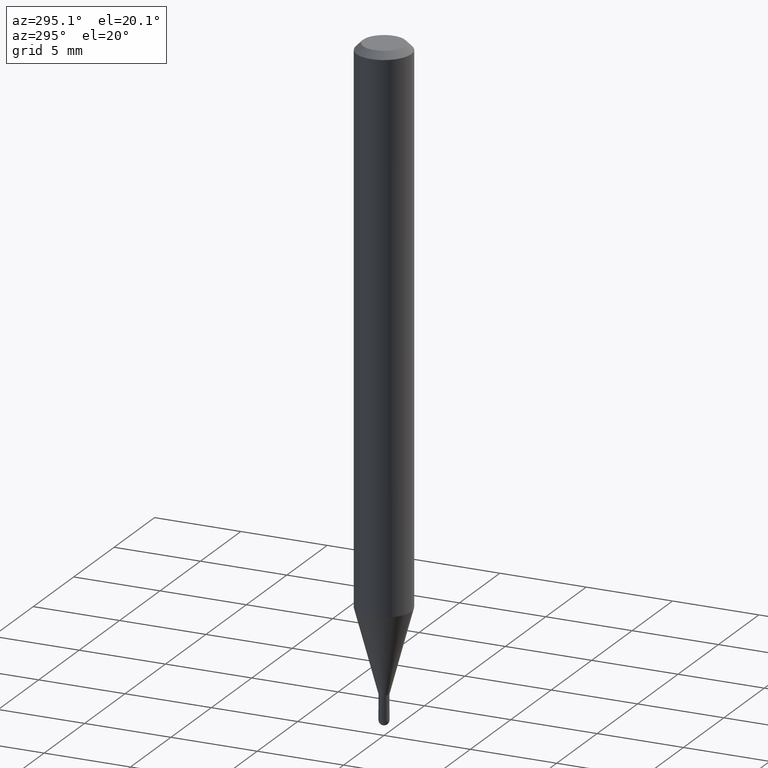
[diagram: clean part render]
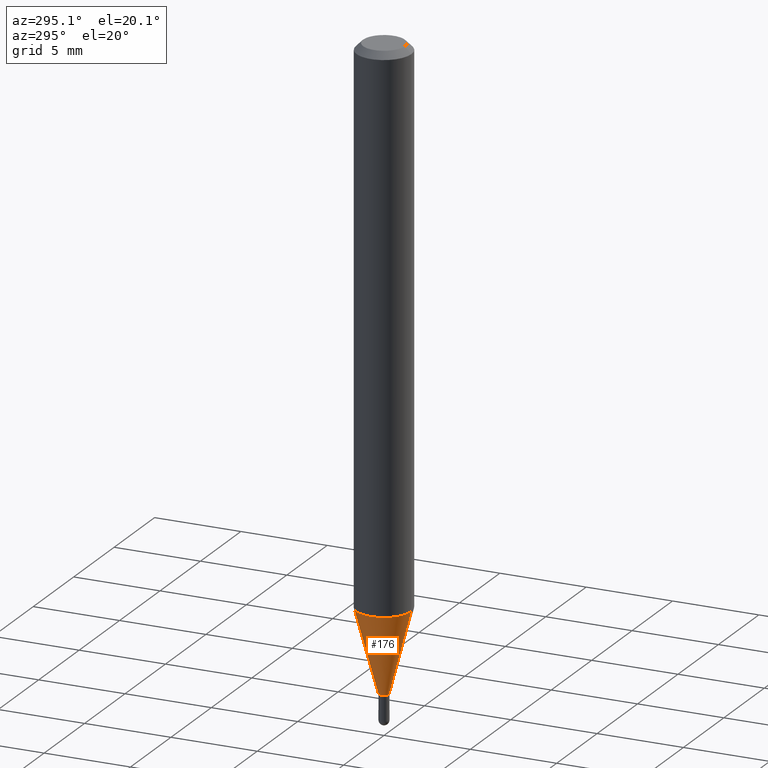
[diagram: same view with one face highlighted and labeled with its STEP entity id]
A machine part, auxiliary view. The second image highlights one B-rep face of the part: STEP entity #176.
In plain terms, the highlighted conical surface has half-angle 15 deg.
Its self-contained STEP definition (entity closure, byte-faithful):
#62 = ORIENTED_EDGE ( 'NONE', *, *, #141, .F. ) ;
#88 = DIRECTION ( 'NONE',  ( -6.982962677686265922E-15, -1.000000000000000000, 4.370956789862821150E-15 ) ) ;
#93 = VERTEX_POINT ( 'NONE', #405 ) ;
#116 = DIRECTION ( 'NONE',  ( -1.807323732225378260E-15, -0.2588190451025250693, 0.9659258262890670910 ) ) ;
#126 = DIRECTION ( 'NONE',  ( -2.445463946140640432E-29, 3.491488298703480451E-15, 1.000000000000000000 ) ) ;
#139 = DIRECTION ( 'NONE',  ( -2.445463946140640432E-29, 3.491488298703480451E-15, 1.000000000000000000 ) ) ;
#141 = EDGE_CURVE ( 'NONE', #280, #93, #498, .T. ) ;
#151 = ORIENTED_EDGE ( 'NONE', *, *, #328, .T. ) ;
#152 = CARTESIAN_POINT ( 'NONE',  ( 8.171241461244403586E-17, 0.01149999999999465686, -1.431000000000000050 ) ) ;
#164 = CARTESIAN_POINT ( 'NONE',  ( 2.629008122312686102E-16, 0.01149999999999465686, -1.431000000000000050 ) ) ;
#166 = DIRECTION ( 'NONE',  ( -6.982962677686265922E-15, -1.000000000000000000, 0.000000000000000000 ) ) ;
#176 = ADVANCED_FACE ( 'NONE', ( #453 ), #429, .T. ) ;
#182 = AXIS2_PLACEMENT_3D ( 'NONE', #484, #139, #303 ) ;
#193 = LINE ( 'NONE', #152, #211 ) ;
#205 = CARTESIAN_POINT ( 'NONE',  ( 3.499458906927257029E-29, -4.996319755444680050E-15, -1.431000000000000050 ) ) ;
#208 = EDGE_CURVE ( 'NONE', #235, #280, #193, .T. ) ;
#211 = VECTOR ( 'NONE', #312, 39.37007874015748143 ) ;
#235 = VERTEX_POINT ( 'NONE', #164 ) ;
#256 = CARTESIAN_POINT ( 'NONE',  ( 3.034002526478456227E-29, -4.331768757480223659E-15, -1.240665408813992121 ) ) ;
#262 = EDGE_LOOP ( 'NONE', ( #418, #277, #151, #62 ) ) ;
#269 = AXIS2_PLACEMENT_3D ( 'NONE', #205, #503, #166 ) ;
#277 = ORIENTED_EDGE ( 'NONE', *, *, #359, .T. ) ;
#280 = VERTEX_POINT ( 'NONE', #320 ) ;
#303 = DIRECTION ( 'NONE',  ( -6.982962677686265922E-15, -1.000000000000000000, 0.000000000000000000 ) ) ;
#307 = VERTEX_POINT ( 'NONE', #362 ) ;
#312 = DIRECTION ( 'NONE',  ( 1.839019923739649225E-15, 0.2588190451025318417, 0.9659258262890653146 ) ) ;
#320 = CARTESIAN_POINT ( 'NONE',  ( 4.440892098500927901E-16, 0.06249999999999567013, -1.240665408813992343 ) ) ;
#328 = EDGE_CURVE ( 'NONE', #307, #93, #398, .T. ) ;
#341 = AXIS2_PLACEMENT_3D ( 'NONE', #256, #126, #88 ) ;
#359 = EDGE_CURVE ( 'NONE', #235, #307, #421, .T. ) ;
#362 = CARTESIAN_POINT ( 'NONE',  ( -8.030407079335462685E-17, -0.01150000000000464886, -1.431000000000000050 ) ) ;
#398 = LINE ( 'NONE', #433, #437 ) ;
#405 = CARTESIAN_POINT ( 'NONE',  ( -4.364351673553613476E-16, -0.06250000000000432987, -1.240665408813991899 ) ) ;
#418 = ORIENTED_EDGE ( 'NONE', *, *, #208, .F. ) ;
#421 = CIRCLE ( 'NONE', #269, 0.01149999999999965286 ) ;
#429 = CONICAL_SURFACE ( 'NONE', #182, 0.01149999999999965286, 0.2617993877991574014 ) ;
#433 = CARTESIAN_POINT ( 'NONE',  ( -8.030407079335462685E-17, -0.01150000000000464886, -1.431000000000000050 ) ) ;
#437 = VECTOR ( 'NONE', #116, 39.37007874015748854 ) ;
#453 = FACE_OUTER_BOUND ( 'NONE', #262, .T. ) ;
#484 = CARTESIAN_POINT ( 'NONE',  ( 3.499458906927257029E-29, -4.996319755444680050E-15, -1.431000000000000050 ) ) ;
#498 = CIRCLE ( 'NONE', #341, 0.06250000000000000000 ) ;
#503 = DIRECTION ( 'NONE',  ( -2.445463946140640432E-29, 3.491488298703480451E-15, 1.000000000000000000 ) ) ;